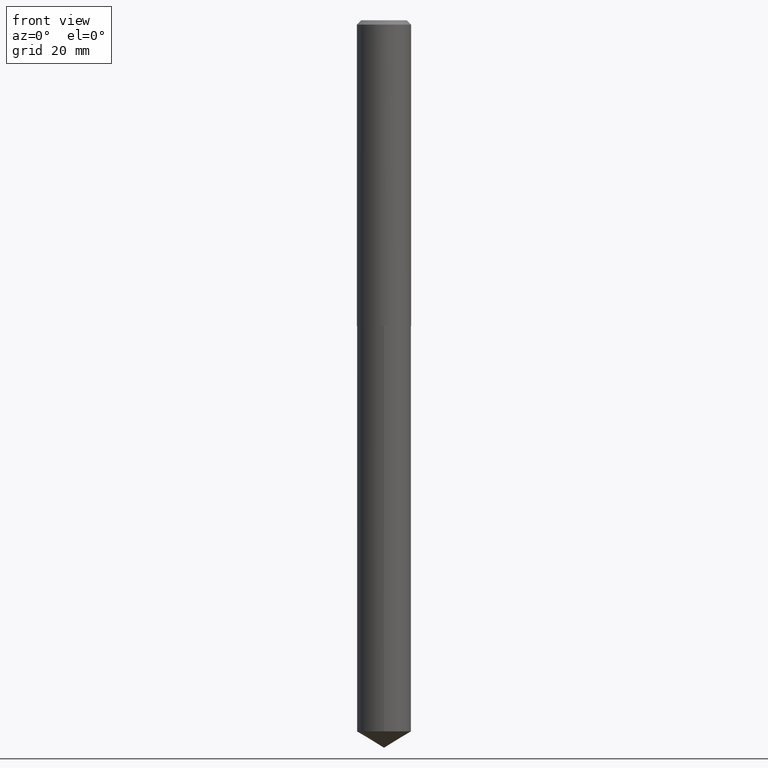
[diagram: clean part render]
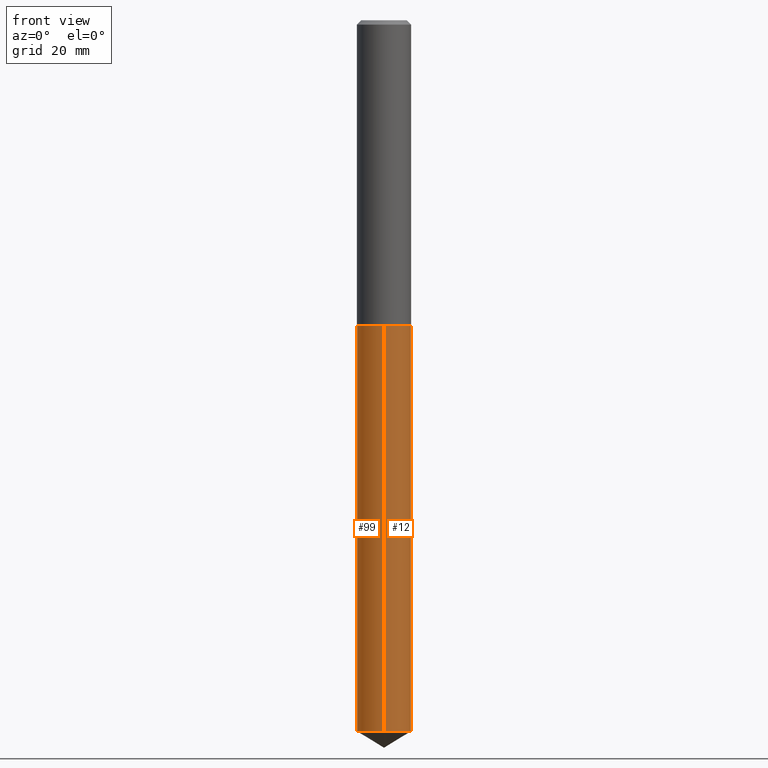
[diagram: same view with one multi-face feature highlighted, each face labeled with its STEP entity id]
A machine part, front view. The highlighted faces form ONE feature: a constant-radius fillet chain: 2 tangent blend faces with common blend radius 4.9505 mm. The faces share edges in the B-rep.
Their STEP definitions:
[1] entity #99 (Cylinder):
#1 = FACE_OUTER_BOUND ( 'NONE', #221, .T. ) ;
#2 = ORIENTED_EDGE ( 'NONE', *, *, #345, .F. ) ;
#28 = EDGE_CURVE ( 'NONE', #132, #239, #150, .T. ) ;
#47 = CIRCLE ( 'NONE', #245, 0.1948999999999999899 ) ;
#66 = CARTESIAN_POINT ( 'NONE',  ( 1.251846236859382793E-28, -1.787338421687552723E-14, -5.119092265351530280 ) ) ;
#71 = AXIS2_PLACEMENT_3D ( 'NONE', #66, #250, #162 ) ;
#88 = DIRECTION ( 'NONE',  ( -2.445428343374626314E-29, 3.491539283890796548E-15, 1.000000000000000000 ) ) ;
#99 = ADVANCED_FACE ( 'NONE', ( #1 ), #308, .T. ) ;
#100 = EDGE_CURVE ( 'NONE', #161, #239, #47, .T. ) ;
#102 = DIRECTION ( 'NONE',  ( -2.445428343374626314E-29, 3.491539283890796548E-15, 1.000000000000000000 ) ) ;
#107 = ORIENTED_EDGE ( 'NONE', *, *, #100, .F. ) ;
#129 = ORIENTED_EDGE ( 'NONE', *, *, #28, .T. ) ;
#132 = VERTEX_POINT ( 'NONE', #187 ) ;
#150 = LINE ( 'NONE', #236, #213 ) ;
#160 = DIRECTION ( 'NONE',  ( -2.445428343374626314E-29, 3.491539283890796548E-15, 1.000000000000000000 ) ) ;
#161 = VERTEX_POINT ( 'NONE', #167 ) ;
#162 = DIRECTION ( 'NONE',  ( -6.982962677686266711E-15, -1.000000000000000000, 5.606665969552105274E-15 ) ) ;
#167 = CARTESIAN_POINT ( 'NONE',  ( 1.384847791996560817E-15, 0.1948999999999923294, -2.200800000000001422 ) ) ;
#175 = VECTOR ( 'NONE', #321, 39.37007874015748143 ) ;
#187 = CARTESIAN_POINT ( 'NONE',  ( -1.360979425880928254E-15, -0.1949000000000179200, -5.119092265351528503 ) ) ;
#200 = EDGE_CURVE ( 'NONE', #284, #132, #266, .T. ) ;
#213 = VECTOR ( 'NONE', #88, 39.37007874015748143 ) ;
#220 = DIRECTION ( 'NONE',  ( -6.982962677686266711E-15, -1.000000000000000000, 2.803332984776052637E-15 ) ) ;
#221 = EDGE_LOOP ( 'NONE', ( #2, #237, #129, #107 ) ) ;
#236 = CARTESIAN_POINT ( 'NONE',  ( -1.360979425880999252E-15, -0.1949000000000076782, -2.200800000000000090 ) ) ;
#237 = ORIENTED_EDGE ( 'NONE', *, *, #200, .T. ) ;
#239 = VERTEX_POINT ( 'NONE', #287 ) ;
#245 = AXIS2_PLACEMENT_3D ( 'NONE', #363, #160, #305 ) ;
#246 = CARTESIAN_POINT ( 'NONE',  ( 5.381987748652249892E-29, -7.684052130525997764E-15, -2.200800000000000534 ) ) ;
#250 = DIRECTION ( 'NONE',  ( -2.445428343374626314E-29, 3.491539283890796548E-15, 1.000000000000000000 ) ) ;
#253 = AXIS2_PLACEMENT_3D ( 'NONE', #246, #102, #220 ) ;
#263 = LINE ( 'NONE', #375, #175 ) ;
#266 = CIRCLE ( 'NONE', #71, 0.1948999999999999899 ) ;
#284 = VERTEX_POINT ( 'NONE', #318 ) ;
#287 = CARTESIAN_POINT ( 'NONE',  ( -1.360979425880999252E-15, -0.1949000000000076782, -2.200800000000000090 ) ) ;
#305 = DIRECTION ( 'NONE',  ( -6.982962677686266711E-15, -1.000000000000000000, 2.803332984776052637E-15 ) ) ;
#308 = CYLINDRICAL_SURFACE ( 'NONE', #253, 0.1948999999999999899 ) ;
#318 = CARTESIAN_POINT ( 'NONE',  ( 1.384847791996560620E-15, 0.1948999999999821708, -5.119092265351531168 ) ) ;
#321 = DIRECTION ( 'NONE',  ( -2.445428343374626314E-29, 3.491539283890796548E-15, 1.000000000000000000 ) ) ;
#345 = EDGE_CURVE ( 'NONE', #284, #161, #263, .T. ) ;
#363 = CARTESIAN_POINT ( 'NONE',  ( 5.381987748652249892E-29, -7.684052130525997764E-15, -2.200800000000000534 ) ) ;
#375 = CARTESIAN_POINT ( 'NONE',  ( 1.384847791996488833E-15, 0.1948999999999923016, -2.200800000000001422 ) ) ;
[2] entity #12 (Cylinder):
#12 = ADVANCED_FACE ( 'NONE', ( #86 ), #146, .T. ) ;
#15 = CIRCLE ( 'NONE', #96, 0.1948999999999999899 ) ;
#27 = DIRECTION ( 'NONE',  ( -6.982962677686266711E-15, -1.000000000000000000, 2.803332984776052637E-15 ) ) ;
#28 = EDGE_CURVE ( 'NONE', #132, #239, #150, .T. ) ;
#37 = DIRECTION ( 'NONE',  ( -6.982962677686266711E-15, -1.000000000000000000, 2.803332984776052637E-15 ) ) ;
#54 = ORIENTED_EDGE ( 'NONE', *, *, #345, .T. ) ;
#65 = EDGE_CURVE ( 'NONE', #239, #161, #224, .T. ) ;
#86 = FACE_OUTER_BOUND ( 'NONE', #123, .T. ) ;
#88 = DIRECTION ( 'NONE',  ( -2.445428343374626314E-29, 3.491539283890796548E-15, 1.000000000000000000 ) ) ;
#96 = AXIS2_PLACEMENT_3D ( 'NONE', #113, #256, #230 ) ;
#113 = CARTESIAN_POINT ( 'NONE',  ( 1.251846236859382793E-28, -1.787338421687552723E-14, -5.119092265351530280 ) ) ;
#123 = EDGE_LOOP ( 'NONE', ( #354, #54, #124, #180 ) ) ;
#124 = ORIENTED_EDGE ( 'NONE', *, *, #65, .F. ) ;
#132 = VERTEX_POINT ( 'NONE', #187 ) ;
#146 = CYLINDRICAL_SURFACE ( 'NONE', #147, 0.1948999999999999899 ) ;
#147 = AXIS2_PLACEMENT_3D ( 'NONE', #357, #361, #27 ) ;
#150 = LINE ( 'NONE', #236, #213 ) ;
#161 = VERTEX_POINT ( 'NONE', #167 ) ;
#165 = AXIS2_PLACEMENT_3D ( 'NONE', #188, #339, #37 ) ;
#167 = CARTESIAN_POINT ( 'NONE',  ( 1.384847791996560817E-15, 0.1948999999999923294, -2.200800000000001422 ) ) ;
#175 = VECTOR ( 'NONE', #321, 39.37007874015748143 ) ;
#180 = ORIENTED_EDGE ( 'NONE', *, *, #28, .F. ) ;
#187 = CARTESIAN_POINT ( 'NONE',  ( -1.360979425880928254E-15, -0.1949000000000179200, -5.119092265351528503 ) ) ;
#188 = CARTESIAN_POINT ( 'NONE',  ( 5.381987748652249892E-29, -7.684052130525997764E-15, -2.200800000000000534 ) ) ;
#213 = VECTOR ( 'NONE', #88, 39.37007874015748143 ) ;
#224 = CIRCLE ( 'NONE', #165, 0.1948999999999999899 ) ;
#230 = DIRECTION ( 'NONE',  ( -6.982962677686266711E-15, -1.000000000000000000, 5.606665969552105274E-15 ) ) ;
#236 = CARTESIAN_POINT ( 'NONE',  ( -1.360979425880999252E-15, -0.1949000000000076782, -2.200800000000000090 ) ) ;
#239 = VERTEX_POINT ( 'NONE', #287 ) ;
#256 = DIRECTION ( 'NONE',  ( -2.445428343374626314E-29, 3.491539283890796548E-15, 1.000000000000000000 ) ) ;
#262 = EDGE_CURVE ( 'NONE', #132, #284, #15, .T. ) ;
#263 = LINE ( 'NONE', #375, #175 ) ;
#284 = VERTEX_POINT ( 'NONE', #318 ) ;
#287 = CARTESIAN_POINT ( 'NONE',  ( -1.360979425880999252E-15, -0.1949000000000076782, -2.200800000000000090 ) ) ;
#318 = CARTESIAN_POINT ( 'NONE',  ( 1.384847791996560620E-15, 0.1948999999999821708, -5.119092265351531168 ) ) ;
#321 = DIRECTION ( 'NONE',  ( -2.445428343374626314E-29, 3.491539283890796548E-15, 1.000000000000000000 ) ) ;
#339 = DIRECTION ( 'NONE',  ( -2.445428343374626314E-29, 3.491539283890796548E-15, 1.000000000000000000 ) ) ;
#345 = EDGE_CURVE ( 'NONE', #284, #161, #263, .T. ) ;
#354 = ORIENTED_EDGE ( 'NONE', *, *, #262, .T. ) ;
#357 = CARTESIAN_POINT ( 'NONE',  ( 5.381987748652249892E-29, -7.684052130525997764E-15, -2.200800000000000534 ) ) ;
#361 = DIRECTION ( 'NONE',  ( -2.445428343374626314E-29, 3.491539283890796548E-15, 1.000000000000000000 ) ) ;
#375 = CARTESIAN_POINT ( 'NONE',  ( 1.384847791996488833E-15, 0.1948999999999923016, -2.200800000000001422 ) ) ;